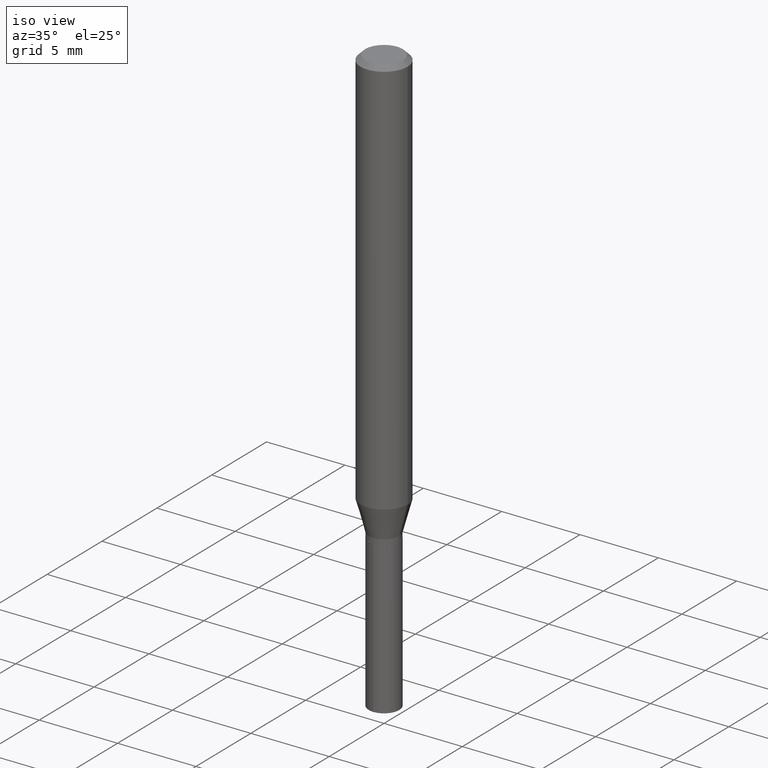
[diagram: clean part render]
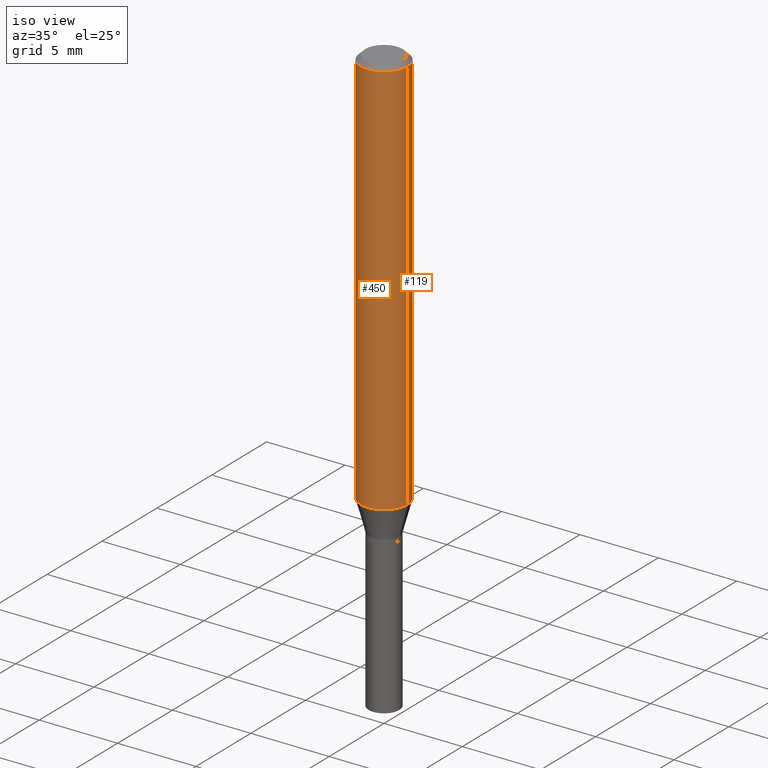
[diagram: same view with one multi-face feature highlighted, each face labeled with its STEP entity id]
A machine part, iso view. The highlighted faces form ONE feature: a constant-radius fillet chain: 2 tangent blend faces with common blend radius 1.4999 mm. The faces share edges in the B-rep.
Their STEP definitions:
[1] entity #119 (Cylinder):
#2 = CARTESIAN_POINT ( 'NONE',  ( -0.05905000000000006077, 4.195754854663395916E-16, -2.904631170795524694E-30 ) ) ;
#6 = DIRECTION ( 'NONE',  ( -2.445468806185136597E-29, 3.491481338843145583E-15, 1.000000000000000000 ) ) ;
#15 = DIRECTION ( 'NONE',  ( -2.445468806185136597E-29, 3.491481338843145583E-15, 1.000000000000000000 ) ) ;
#29 = CARTESIAN_POINT ( 'NONE',  ( 0.000000000000000000, 0.000000000000000000, 0.000000000000000000 ) ) ;
#52 = AXIS2_PLACEMENT_3D ( 'NONE', #127, #15, #256 ) ;
#55 = ORIENTED_EDGE ( 'NONE', *, *, #318, .T. ) ;
#75 = DIRECTION ( 'NONE',  ( 1.000000000000000000, -6.982962677686266711E-15, 0.000000000000000000 ) ) ;
#80 = CARTESIAN_POINT ( 'NONE',  ( 2.459978141446892264E-29, -3.512196824224644331E-15, -1.005933150823702382 ) ) ;
#119 = ADVANCED_FACE ( 'NONE', ( #371 ), #185, .T. ) ;
#127 = CARTESIAN_POINT ( 'NONE',  ( 2.888098660104663766E-31, -4.123439461173779647E-17, -0.01181000000000007044 ) ) ;
#131 = CARTESIAN_POINT ( 'NONE',  ( -0.05905000000000011628, -3.092621338758304049E-15, -1.005933150823702382 ) ) ;
#134 = CARTESIAN_POINT ( 'NONE',  ( 0.05905000000000006077, -4.123439461173744764E-16, 2.879382386107503023E-30 ) ) ;
#147 = VECTOR ( 'NONE', #360, 39.37007874015748143 ) ;
#176 = VERTEX_POINT ( 'NONE', #280 ) ;
#185 = CYLINDRICAL_SURFACE ( 'NONE', #348, 0.05905000000000006077 ) ;
#209 = EDGE_CURVE ( 'NONE', #469, #176, #490, .T. ) ;
#249 = ORIENTED_EDGE ( 'NONE', *, *, #209, .T. ) ;
#250 = ORIENTED_EDGE ( 'NONE', *, *, #470, .F. ) ;
#256 = DIRECTION ( 'NONE',  ( 1.000000000000000000, -6.982962677686266711E-15, 0.000000000000000000 ) ) ;
#277 = CIRCLE ( 'NONE', #52, 0.05904999999999999832 ) ;
#280 = CARTESIAN_POINT ( 'NONE',  ( -0.05904999999999999832, -1.357140123951850551E-15, -0.01181000000000007044 ) ) ;
#287 = LINE ( 'NONE', #134, #147 ) ;
#300 = DIRECTION ( 'NONE',  ( -2.445468806185136597E-29, 3.491481338843145583E-15, 1.000000000000000000 ) ) ;
#311 = DIRECTION ( 'NONE',  ( -2.445468806185136877E-29, 3.491481338843145188E-15, 1.000000000000000000 ) ) ;
#312 = VECTOR ( 'NONE', #311, 39.37007874015748143 ) ;
#318 = EDGE_CURVE ( 'NONE', #333, #469, #434, .T. ) ;
#327 = CARTESIAN_POINT ( 'NONE',  ( 0.05904999999999999832, -4.535783407291118600E-16, -0.01181000000000007044 ) ) ;
#333 = VERTEX_POINT ( 'NONE', #404 ) ;
#341 = ORIENTED_EDGE ( 'NONE', *, *, #431, .F. ) ;
#348 = AXIS2_PLACEMENT_3D ( 'NONE', #29, #300, #442 ) ;
#360 = DIRECTION ( 'NONE',  ( -2.445468806185136877E-29, 3.491481338843145188E-15, 1.000000000000000000 ) ) ;
#371 = FACE_OUTER_BOUND ( 'NONE', #396, .T. ) ;
#396 = EDGE_LOOP ( 'NONE', ( #55, #249, #341, #250 ) ) ;
#404 = CARTESIAN_POINT ( 'NONE',  ( 0.05905000000000011628, -3.924540770342018857E-15, -1.005933150823702382 ) ) ;
#431 = EDGE_CURVE ( 'NONE', #458, #176, #277, .T. ) ;
#434 = CIRCLE ( 'NONE', #453, 0.05905000000000011628 ) ;
#442 = DIRECTION ( 'NONE',  ( 1.000000000000000000, -6.982962677686266711E-15, 4.876176775795935793E-29 ) ) ;
#453 = AXIS2_PLACEMENT_3D ( 'NONE', #80, #6, #75 ) ;
#458 = VERTEX_POINT ( 'NONE', #327 ) ;
#469 = VERTEX_POINT ( 'NONE', #131 ) ;
#470 = EDGE_CURVE ( 'NONE', #333, #458, #287, .T. ) ;
#490 = LINE ( 'NONE', #2, #312 ) ;
[2] entity #450 (Cylinder):
#2 = CARTESIAN_POINT ( 'NONE',  ( -0.05905000000000006077, 4.195754854663395916E-16, -2.904631170795524694E-30 ) ) ;
#23 = AXIS2_PLACEMENT_3D ( 'NONE', #299, #197, #412 ) ;
#45 = CIRCLE ( 'NONE', #329, 0.05904999999999999832 ) ;
#71 = AXIS2_PLACEMENT_3D ( 'NONE', #388, #170, #466 ) ;
#131 = CARTESIAN_POINT ( 'NONE',  ( -0.05905000000000011628, -3.092621338758304049E-15, -1.005933150823702382 ) ) ;
#134 = CARTESIAN_POINT ( 'NONE',  ( 0.05905000000000006077, -4.123439461173744764E-16, 2.879382386107503023E-30 ) ) ;
#140 = ORIENTED_EDGE ( 'NONE', *, *, #209, .F. ) ;
#147 = VECTOR ( 'NONE', #360, 39.37007874015748143 ) ;
#160 = CIRCLE ( 'NONE', #23, 0.05905000000000011628 ) ;
#170 = DIRECTION ( 'NONE',  ( -2.445468806185136597E-29, 3.491481338843145583E-15, 1.000000000000000000 ) ) ;
#176 = VERTEX_POINT ( 'NONE', #280 ) ;
#197 = DIRECTION ( 'NONE',  ( -2.445468806185136597E-29, 3.491481338843145583E-15, 1.000000000000000000 ) ) ;
#209 = EDGE_CURVE ( 'NONE', #469, #176, #490, .T. ) ;
#238 = EDGE_CURVE ( 'NONE', #176, #458, #45, .T. ) ;
#252 = CYLINDRICAL_SURFACE ( 'NONE', #71, 0.05905000000000006077 ) ;
#258 = ORIENTED_EDGE ( 'NONE', *, *, #303, .T. ) ;
#276 = DIRECTION ( 'NONE',  ( 1.000000000000000000, -6.982962677686266711E-15, 0.000000000000000000 ) ) ;
#280 = CARTESIAN_POINT ( 'NONE',  ( -0.05904999999999999832, -1.357140123951850551E-15, -0.01181000000000007044 ) ) ;
#287 = LINE ( 'NONE', #134, #147 ) ;
#299 = CARTESIAN_POINT ( 'NONE',  ( 2.459978141446892264E-29, -3.512196824224644331E-15, -1.005933150823702382 ) ) ;
#303 = EDGE_CURVE ( 'NONE', #469, #333, #160, .T. ) ;
#311 = DIRECTION ( 'NONE',  ( -2.445468806185136877E-29, 3.491481338843145188E-15, 1.000000000000000000 ) ) ;
#312 = VECTOR ( 'NONE', #311, 39.37007874015748143 ) ;
#317 = CARTESIAN_POINT ( 'NONE',  ( 2.888098660104663766E-31, -4.123439461173779647E-17, -0.01181000000000007044 ) ) ;
#327 = CARTESIAN_POINT ( 'NONE',  ( 0.05904999999999999832, -4.535783407291118600E-16, -0.01181000000000007044 ) ) ;
#328 = ORIENTED_EDGE ( 'NONE', *, *, #470, .T. ) ;
#329 = AXIS2_PLACEMENT_3D ( 'NONE', #317, #414, #276 ) ;
#333 = VERTEX_POINT ( 'NONE', #404 ) ;
#360 = DIRECTION ( 'NONE',  ( -2.445468806185136877E-29, 3.491481338843145188E-15, 1.000000000000000000 ) ) ;
#388 = CARTESIAN_POINT ( 'NONE',  ( 0.000000000000000000, 0.000000000000000000, 0.000000000000000000 ) ) ;
#389 = ORIENTED_EDGE ( 'NONE', *, *, #238, .F. ) ;
#395 = FACE_OUTER_BOUND ( 'NONE', #465, .T. ) ;
#404 = CARTESIAN_POINT ( 'NONE',  ( 0.05905000000000011628, -3.924540770342018857E-15, -1.005933150823702382 ) ) ;
#412 = DIRECTION ( 'NONE',  ( 1.000000000000000000, -6.982962677686266711E-15, 0.000000000000000000 ) ) ;
#414 = DIRECTION ( 'NONE',  ( -2.445468806185136597E-29, 3.491481338843145583E-15, 1.000000000000000000 ) ) ;
#450 = ADVANCED_FACE ( 'NONE', ( #395 ), #252, .T. ) ;
#458 = VERTEX_POINT ( 'NONE', #327 ) ;
#465 = EDGE_LOOP ( 'NONE', ( #140, #258, #328, #389 ) ) ;
#466 = DIRECTION ( 'NONE',  ( 1.000000000000000000, -6.982962677686266711E-15, 4.876176775795935793E-29 ) ) ;
#469 = VERTEX_POINT ( 'NONE', #131 ) ;
#470 = EDGE_CURVE ( 'NONE', #333, #458, #287, .T. ) ;
#490 = LINE ( 'NONE', #2, #312 ) ;